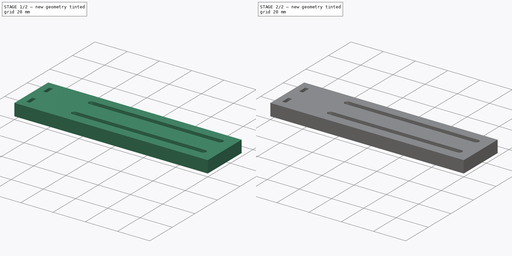
[diagram: build sequence overview — one tinted view per stage of 2, left to right]
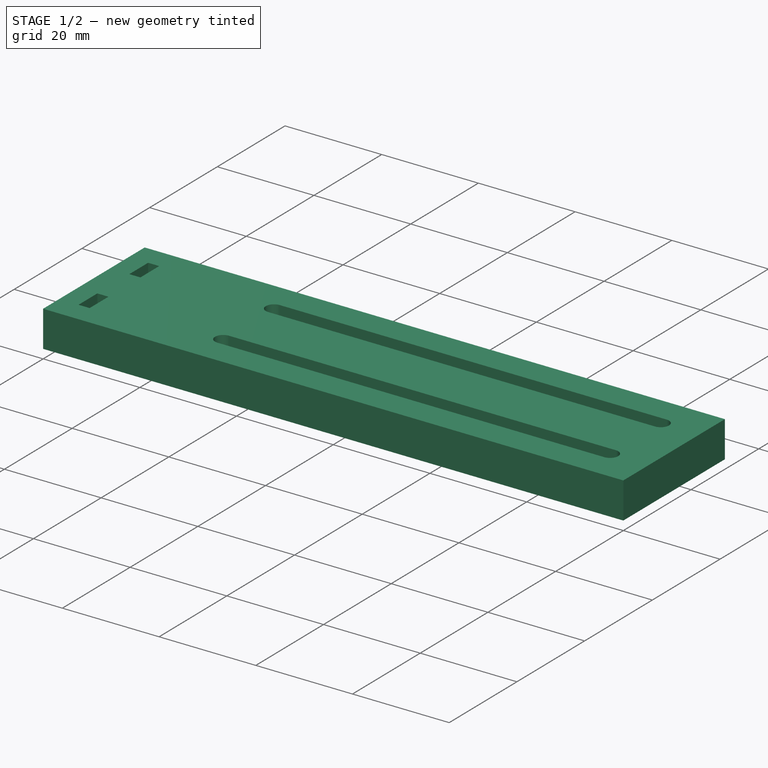
[diagram: stage 1 of 2 — iso view after this stage's code; geometry added in this stage tinted green]
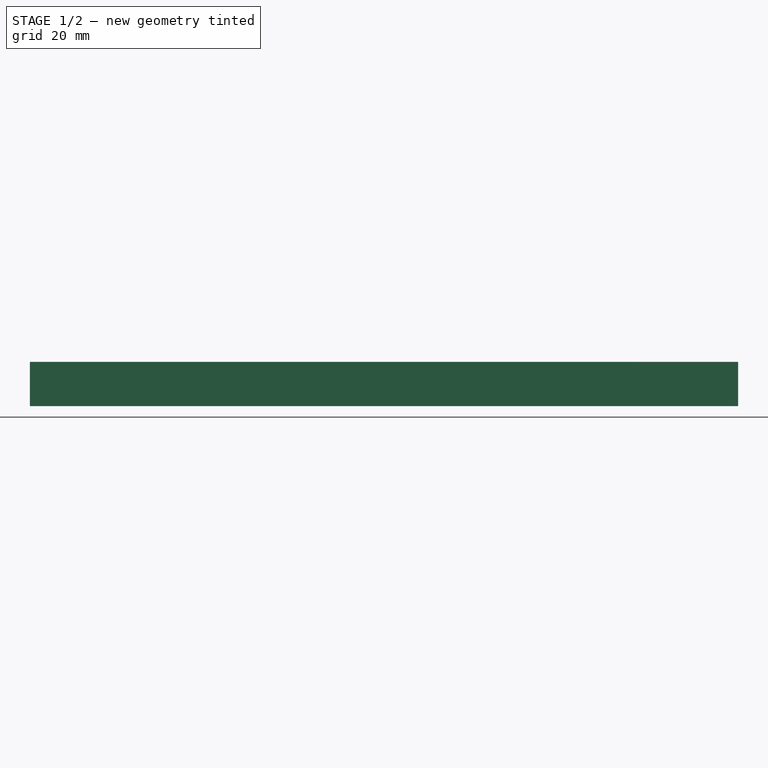
[diagram: stage 1 of 2 — front view after this stage's code; geometry added in this stage tinted green]
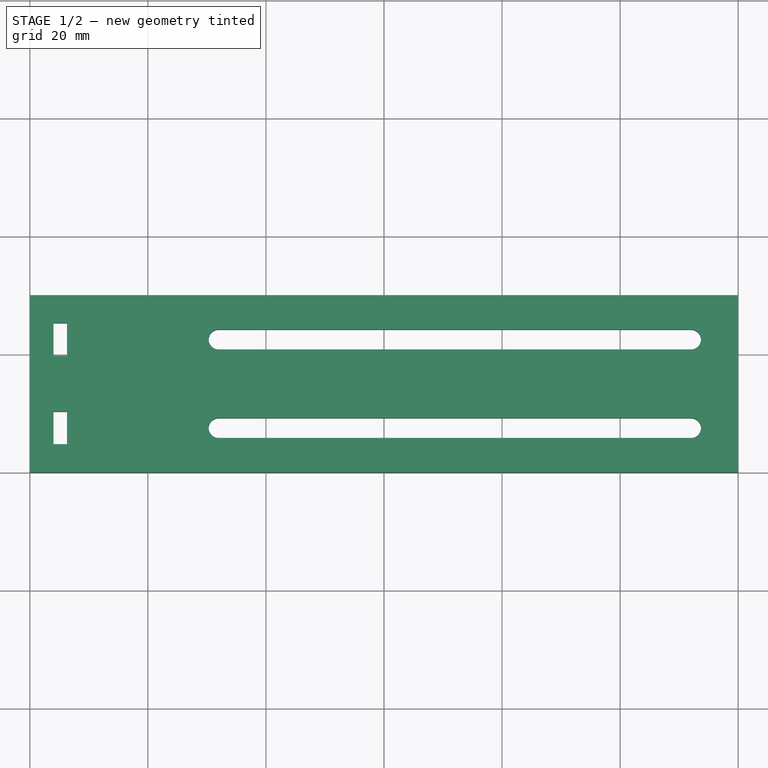
[diagram: stage 1 of 2 — top view after this stage's code; geometry added in this stage tinted green]
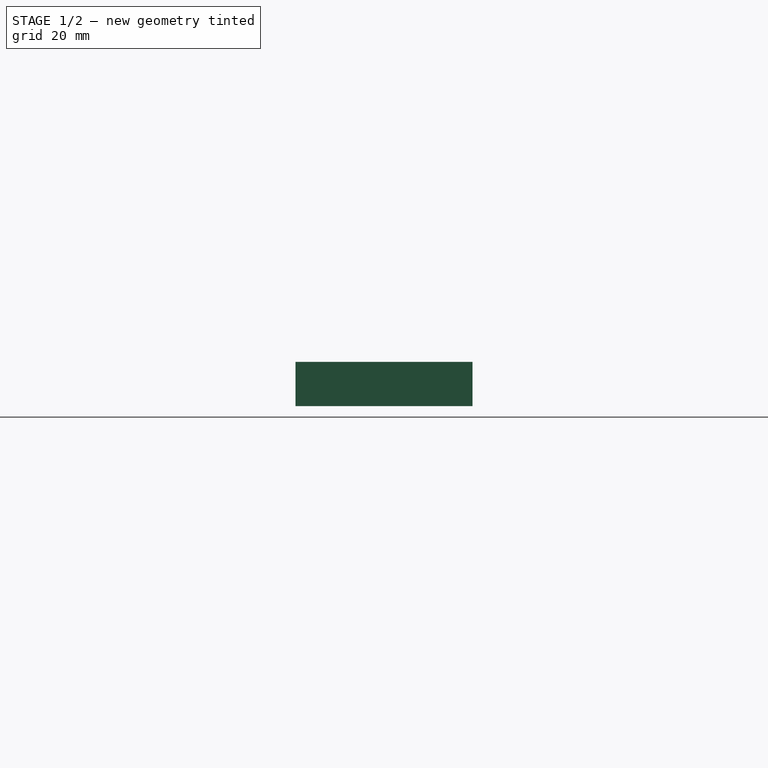
[diagram: stage 1 of 2 — right view after this stage's code; geometry added in this stage tinted green]
FCSTD DOCUMENT  (FreeCAD 0.18R16093 +53 (Git))
Label: langloch_wunder
License: All rights reserved
LicenseURL: http://en.wikipedia.org/wiki/All_rights_reserved
objects: Sketcher::SketchObject×2, PartDesign::Pad×1, PartDesign::Pocket×1, PartDesign::Body×1
note: 7 computed .brp shape members not serialized (recipe doc carries the construction recipe); baked Part::Feature solids carry a one-line shape summary decoded from their .brp

FEATURE [Sketcher::SketchObject] Sketch
  MapMode = 5
  Support = -> [XY_Plane]
  sketch-geometry (20):
    g0: LineSegment StartX=0 StartY=0 StartZ=0 EndX=120 EndY=0 EndZ=0
    g1: LineSegment StartX=120 StartY=0 StartZ=0 EndX=120 EndY=30 EndZ=0
    g2: LineSegment StartX=120 StartY=30 StartZ=0 EndX=0 EndY=30 EndZ=0
    g3: LineSegment StartX=0 StartY=30 StartZ=0 EndX=0 EndY=0 EndZ=0
    g4: LineSegment StartX=4 StartY=25.3 StartZ=0 EndX=6.3 EndY=25.3 EndZ=0
    g5: LineSegment StartX=6.3 StartY=25.3 StartZ=0 EndX=6.3 EndY=19.75 EndZ=0
    g6: LineSegment StartX=6.3 StartY=19.75 StartZ=0 EndX=4 EndY=19.75 EndZ=0
    g7: LineSegment StartX=4 StartY=19.75 StartZ=0 EndX=4 EndY=25.3 EndZ=0
    g8: LineSegment StartX=4 StartY=10.3 StartZ=0 EndX=6.3 EndY=10.3 EndZ=0
    g9: LineSegment StartX=6.3 StartY=10.3 StartZ=0 EndX=6.3 EndY=4.75 EndZ=0
    g10: LineSegment StartX=6.3 StartY=4.75 StartZ=0 EndX=4 EndY=4.75 EndZ=0
    g11: LineSegment StartX=4 StartY=4.75 StartZ=0 EndX=4 EndY=10.3 EndZ=0
    g12: ArcOfCircle CenterX=32 CenterY=22.5 CenterZ=0 NormalX=0 NormalY=0 NormalZ=1 AngleXU=0 Radius=1.7 StartAngle=1.5708 EndAngle=4.71239
    g13: ArcOfCircle CenterX=112 CenterY=22.5 CenterZ=0 NormalX=0 NormalY=0 NormalZ=1 AngleXU=0 Radius=1.7 StartAngle=4.71239 EndAngle=7.85398
    g14: LineSegment StartX=32 StartY=20.8 StartZ=0 EndX=112 EndY=20.8 EndZ=0
    g15: LineSegment StartX=32 StartY=24.2 StartZ=0 EndX=112 EndY=24.2 EndZ=0
    g16: ArcOfCircle CenterX=32 CenterY=7.5 CenterZ=0 NormalX=0 NormalY=0 NormalZ=1 AngleXU=0 Radius=1.7 StartAngle=1.5708 EndAngle=4.71239
    g17: ArcOfCircle CenterX=112 CenterY=7.5 CenterZ=0 NormalX=0 NormalY=0 NormalZ=1 AngleXU=0 Radius=1.7 StartAngle=4.71239 EndAngle=7.85398
    g18: LineSegment StartX=32 StartY=5.8 StartZ=0 EndX=112 EndY=5.8 EndZ=0
    g19: LineSegment StartX=32 StartY=9.2 StartZ=0 EndX=112 EndY=9.2 EndZ=0
  constraints (55):
    c: Coincident(g0,g1)
    c: Coincident(g1,g2)
    c: Coincident(g2,g3)
    c: Coincident(g3,g0)
    c: Horizontal(g0)
    c: Horizontal(g2)
    c: Vertical(g1)
    c: Vertical(g3)
    c: DistanceY(g3,g3) = 30
    c: DistanceX(g0,g0) = 120
    c: Coincident(g0,g-1)
    c: Coincident(g4,g5)
    c: Coincident(g5,g6)
    c: Coincident(g6,g7)
    c: Coincident(g7,g4)
    c: Horizontal(g4)
    c: Horizontal(g6)
    c: Vertical(g5)
    c: Vertical(g7)
    c: DistanceX(g6,g6) = 2.3
    c: DistanceY(g7,g7) = 5.55
    c: Coincident(g8,g9)
    c: Coincident(g9,g10)
    c: Coincident(g10,g11)
    c: Coincident(g11,g8)
    c: Horizontal(g8)
    c: Horizontal(g10)
    c: Vertical(g9)
    c: Vertical(g11)
    c: DistanceX(g10,g10) = 2.3
    c: DistanceY(g9,g9) = 5.55
    c: Vertical(g8,g5)
    c: DistanceY(g8,g4) = 15
    c: DistanceX(g0,g10) = 4
    c: DistanceY(g0,g10) = 4.75
    c: Tangent(g12,g15) = 1.5708
    c: Tangent(g12,g14) = -1.5708
    c: Tangent(g14,g13) = -1.5708
    c: Tangent(g15,g13) = 1.5708
    c: Horizontal(g14)
    c: Equal(g12,g13)
    c: Tangent(g16,g19) = 1.5708
    c: Tangent(g16,g18) = -1.5708
    c: Tangent(g18,g17) = -1.5708
    c: Tangent(g19,g17) = 1.5708
    c: Horizontal(g18)
    c: Equal(g16,g17)
    c: Radius(g17) = 1.7
    c: Radius(g13) = 1.7
    c: DistanceY(g17,g13) = 15
    c: DistanceY(g0,g17) = 7.5
    c: Vertical(g17,g13)
    c: Vertical(g16,g12)
    c: DistanceX(g15,g15) = 80
    c: DistanceX(g17,g0) = 8
FEATURE [PartDesign::Pad] Pad
  Length = 7.5
  Length2 = 100
  Profile = -> Sketch
  Type = 0
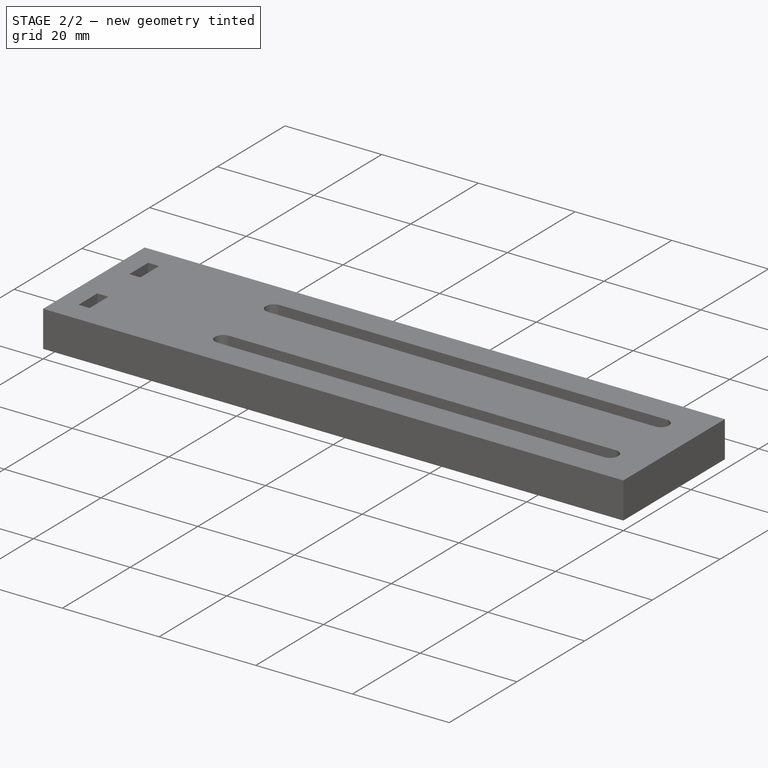
[diagram: stage 2 of 2 — iso view after this stage's code; geometry added in this stage tinted green]
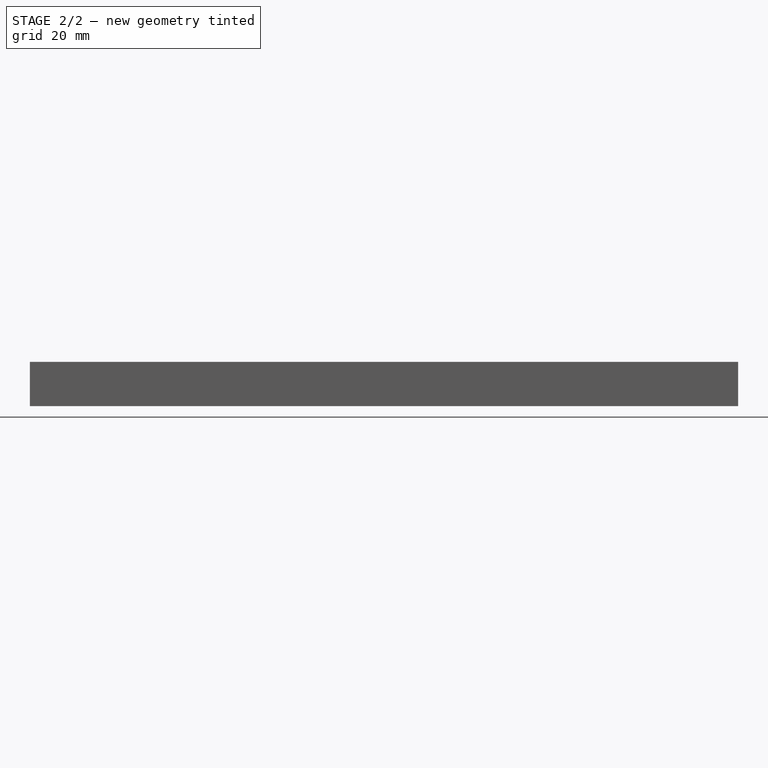
[diagram: stage 2 of 2 — front view after this stage's code; geometry added in this stage tinted green]
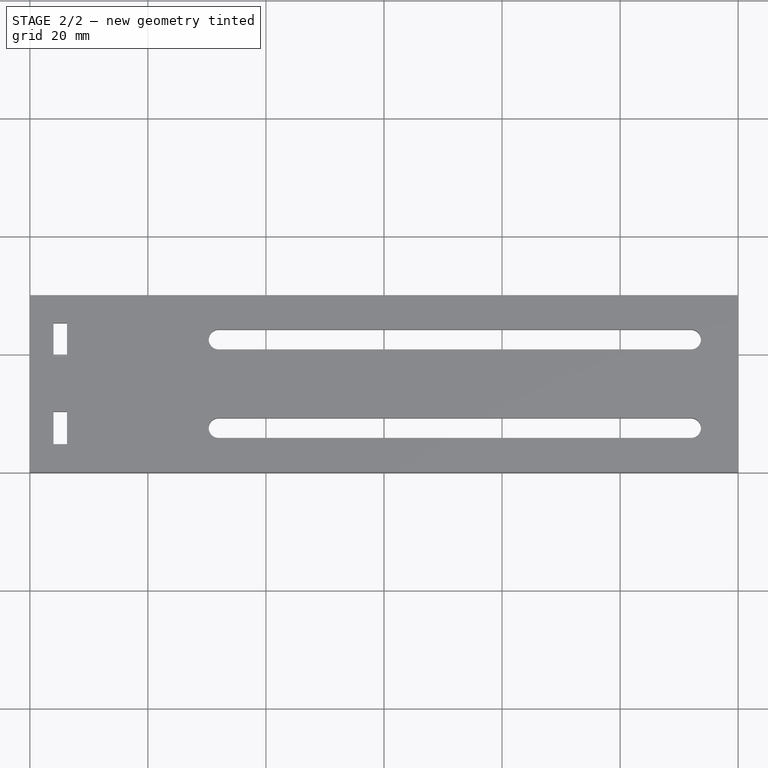
[diagram: stage 2 of 2 — top view after this stage's code; geometry added in this stage tinted green]
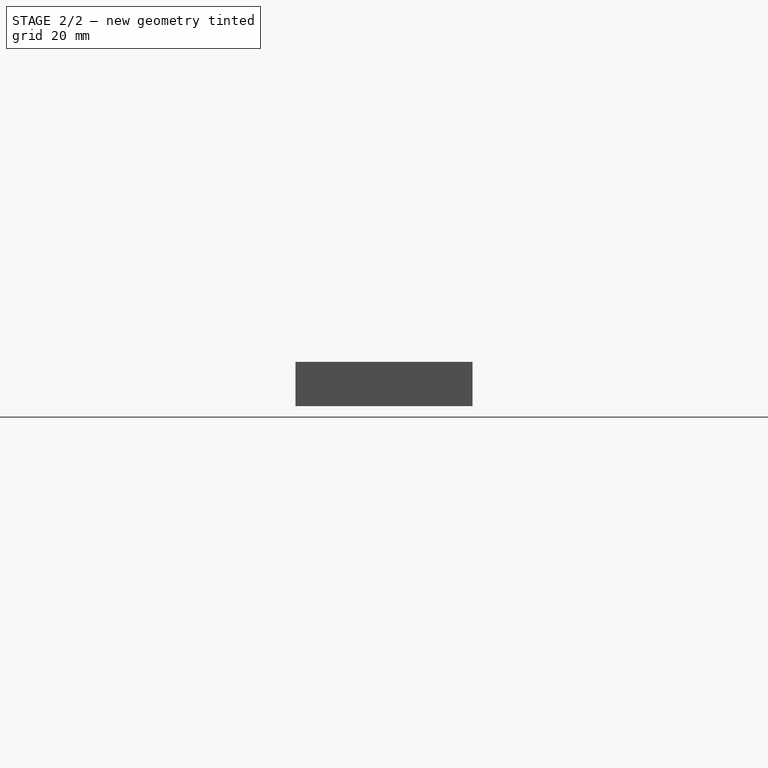
[diagram: stage 2 of 2 — right view after this stage's code; geometry added in this stage tinted green]
FEATURE [Sketcher::SketchObject] Sketch001
  MapMode = 5
  Placement = pos=(0,0,0) rot=(0.57735,-0.57735,-0.57735;2.0944rad)
  Support = -> [Pad]
  sketch-geometry (2):
    g0: Circle CenterX=-22.5 CenterY=3.75 CenterZ=0 NormalX=0 NormalY=0 NormalZ=1 AngleXU=0 Radius=1.7
    g1: Circle CenterX=-7.5 CenterY=3.75 CenterZ=0 NormalX=0 NormalY=0 NormalZ=1 AngleXU=0 Radius=1.7
  constraints (6):
    c: Radius(g1) = 1.7
    c: Equal(g1,g0)
    c: Horizontal(g0,g1)
    c: DistanceY(g-1,g1) = 3.75
    c: DistanceX(g0,g1) = 15
    c: DistanceX(g1,g-1) = 7.5
FEATURE [PartDesign::Pocket] Pocket
  BaseFeature = -> Pad
  Length = 15
  Length2 = 100
  Profile = -> Sketch001
  Type = 0
FEATURE [PartDesign::Body] Body
  Group = -> [Sketch,Pad,Sketch001,Pocket]
  Origin = -> Origin
  Tip = -> Pocket
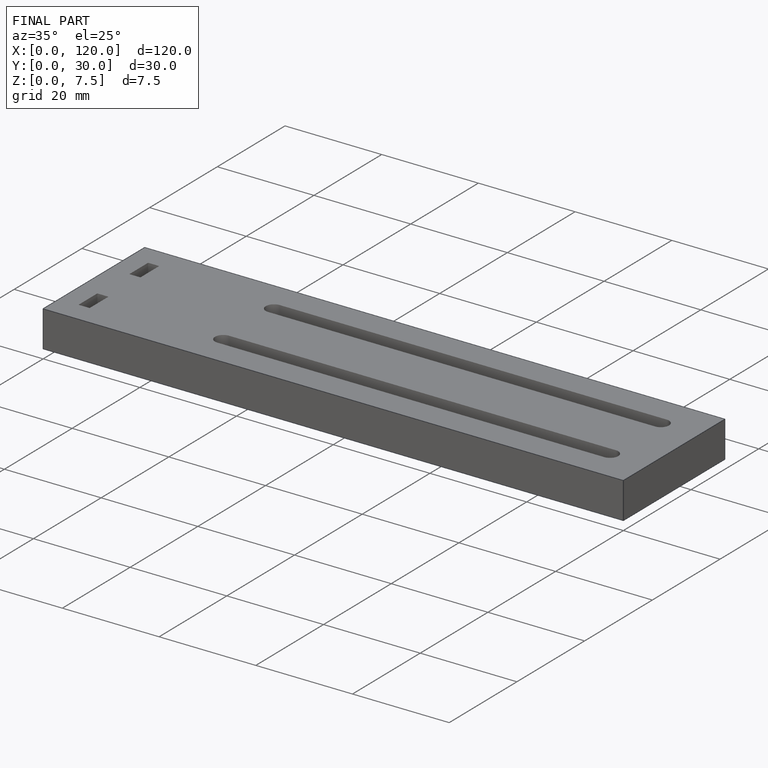
[diagram: finished part — iso view with bounding-box wireframe]
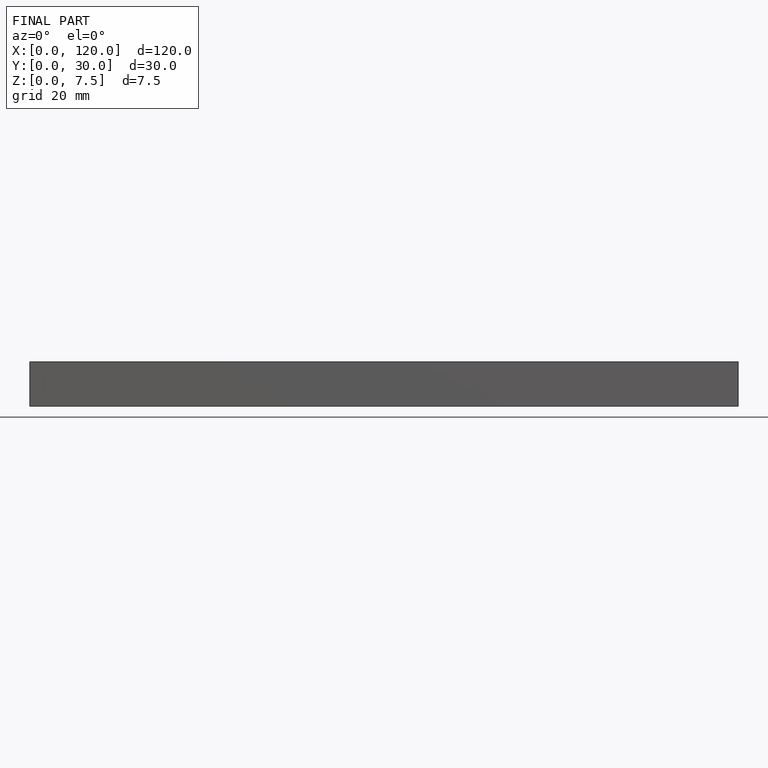
[diagram: finished part — front view with bounding-box wireframe]
